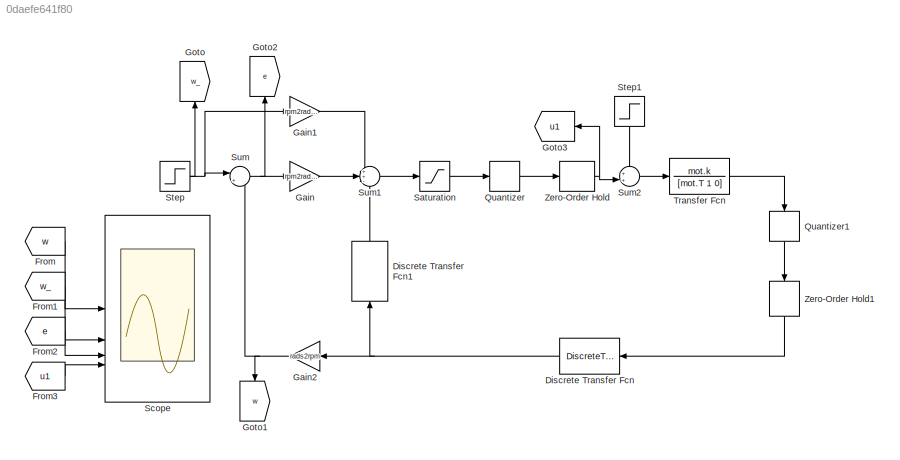
MODEL slx_0daefe641f80
KIND model
CONFIG AbsTol = auto
CONFIG EnableMultiTasking = off
CONFIG FixedStep = auto
CONFIG MaxStep = 0.0001
CONFIG MinStep = auto
CONFIG RelTol = 1e-3
CONFIG SampleTimeConstraint = Unconstrained
CONFIG SolverName = ode45
CONFIG StartTime = 0.0
CONFIG StopTime = 2
BLOCK [DiscreteTransferFcn] Discrete Transfer Fcn
  Denominator = denH
  InputPortMap = u0
  Numerator = numH
  SampleTime = Ts
BLOCK [DiscreteTransferFcn] Discrete Transfer Fcn1
  Denominator = denC2
  InputPortMap = u0
  NameLocation = left
  Numerator = numC2
  SampleTime = Ts
BLOCK [From] From
  GotoTag = w
BLOCK [From] From1
  GotoTag = w_
BLOCK [From] From2
  GotoTag = e
BLOCK [From] From3
  GotoTag = u1
BLOCK [Gain] Gain
  Gain = rpm2rads * pd.Kp
BLOCK [Gain] Gain1
  Gain = rpm2rads * F
BLOCK [Gain] Gain2
  Gain = rads2rpm
  NameLocation = top
BLOCK [Goto] Goto
  GotoTag = w_
  NameLocation = right
BLOCK [Goto] Goto1
  GotoTag = w
  NameLocation = left
BLOCK [Goto] Goto2
  GotoTag = e
  NameLocation = right
BLOCK [Goto] Goto3
  GotoTag = u1
  NameLocation = top
BLOCK [Quantizer] Quantizer
  QuantizationInterval = 2 * umax / 2^bit
BLOCK [Quantizer] Quantizer1
  NameLocation = left
  QuantizationInterval = pulse2rad
BLOCK [Saturate] Saturation
  LowerLimit = -umax
  UpperLimit = umax
BLOCK [Scope] Scope
  Floating = off
  NumInputPorts = 4
  ScopeSpecificationString = Simulink.scopes.TimeScopeBlockCfg('CurrentConfiguration', extmgr.ConfigurationSet(extmgr.Configuration('Core','General UI',true),extmgr.Configuration('Core','Source UI',true),extmgr.Configuration('Sources','WiredSimulink',true,'DataLogging',true,'DataLoggingVariableName','sim1_res','DataLoggingSaveFormat','StructureWithTime'),extmgr.Configuration('Visuals','Time Domain',true,'SerializedDisplays',{...<+3428ch>
BLOCK [Step] Step
  After = r.A
  SampleTime = 0
  Time = r.t
BLOCK [Step] Step1
  After = d.A
  NameLocation = left
  SampleTime = 0
  Time = d.t
BLOCK [Sum] Sum
  Inputs = |+-
BLOCK [Sum] Sum1
  Inputs = ++-
BLOCK [Sum] Sum2
  Inputs = ++|
BLOCK [TransferFcn] Transfer Fcn
  Denominator = [mot.T 1 0]
  Numerator = mot.k
BLOCK [ZeroOrderHold] Zero-Order Hold
  SampleTime = Ts
BLOCK [ZeroOrderHold] Zero-Order Hold1
  NameLocation = left
  SampleTime = Ts
LINE Discrete Transfer Fcn1:1 -> Sum1:3
NET Discrete Transfer Fcn:1 -> Discrete Transfer Fcn1:1, Gain2:1
LINE From1:1 -> Scope:2
LINE From2:1 -> Scope:3
LINE From3:1 -> Scope:4
LINE From:1 -> Scope:1
LINE Gain1:1 -> Sum1:1
NET Gain2:1 -> Goto1:1, Sum:2
LINE Gain:1 -> Sum1:2
LINE Quantizer1:1 -> Zero-Order Hold1:1
LINE Quantizer:1 -> Zero-Order Hold:1
LINE Saturation:1 -> Quantizer:1
LINE Step1:1 -> Sum2:1
NET Step:1 -> Gain1:1, Goto:1, Sum:1
LINE Sum1:1 -> Saturation:1
LINE Sum2:1 -> Transfer Fcn:1
NET Sum:1 -> Gain:1, Goto2:1
LINE Transfer Fcn:1 -> Quantizer1:1
LINE Zero-Order Hold1:1 -> Discrete Transfer Fcn:1
NET Zero-Order Hold:1 -> Goto3:1, Sum2:2
note: NET lines group one-source signal fan-out (src -> all destinations, sorted); 1:1 wires keep LINE
